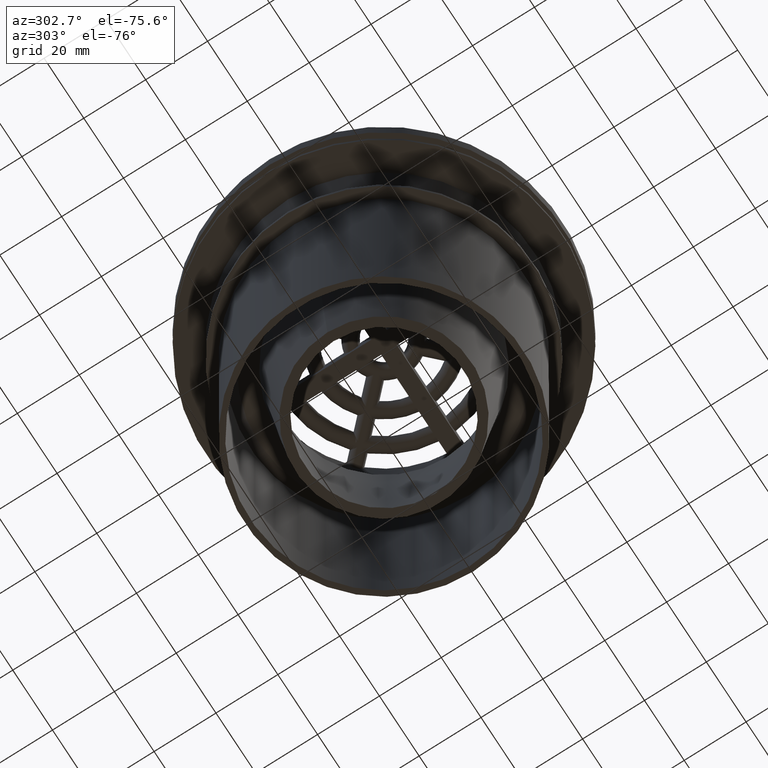
[diagram: clean part render]
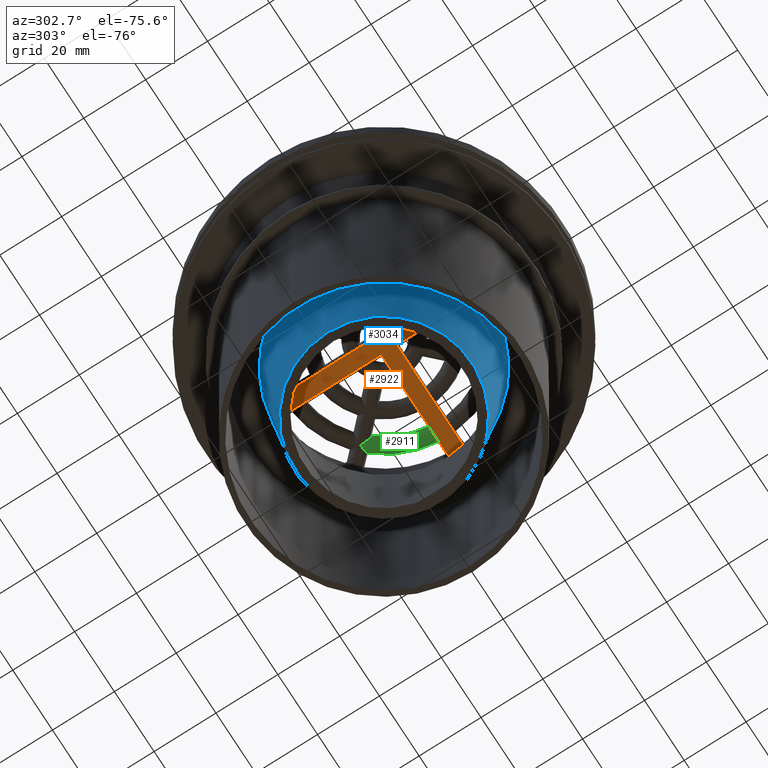
[diagram: same view with three faces highlighted in distinct colors, each labeled with its STEP entity id]
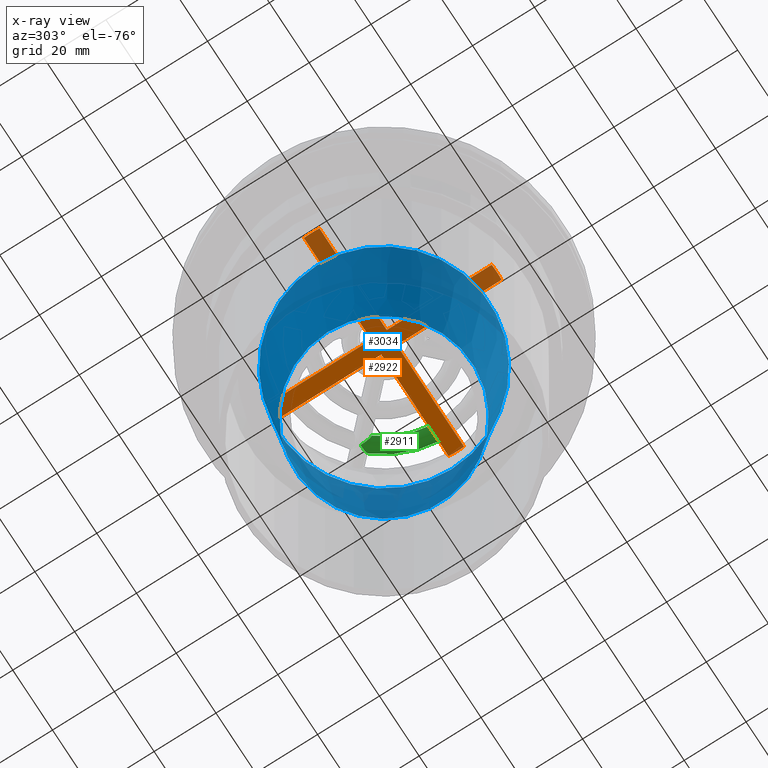
[diagram: x-ray of the same camera — body ghosted, the three highlighted faces saturated]
A machine part, auxiliary view with three faces highlighted in distinct colors.
The next image is the same camera in x-ray (body ghosted, the three faces saturated) — at least one of them is partly hidden behind the body in this view.
Their STEP definitions:

[orange] entity #2922 — the highlighted planar face has unit normal (0, 0, 1).
#35=LINE('',#4727,#237);
#36=LINE('',#4729,#238);
#37=LINE('',#4730,#239);
#38=LINE('',#4732,#240);
#39=LINE('',#4733,#241);
#40=LINE('',#4735,#242);
#41=LINE('',#4736,#243);
#42=LINE('',#4738,#244);
#237=VECTOR('',#3545,1000.);
#238=VECTOR('',#3546,1000.);
#239=VECTOR('',#3547,1000.);
#240=VECTOR('',#3548,1000.);
#241=VECTOR('',#3549,1000.);
#242=VECTOR('',#3550,1000.);
#243=VECTOR('',#3551,1000.);
#244=VECTOR('',#3552,1000.);
#708=ORIENTED_EDGE('',*,*,#1504,.F.);
#709=ORIENTED_EDGE('',*,*,#1584,.T.);
#710=ORIENTED_EDGE('',*,*,#1585,.T.);
#711=ORIENTED_EDGE('',*,*,#1498,.F.);
#712=ORIENTED_EDGE('',*,*,#1586,.T.);
#713=ORIENTED_EDGE('',*,*,#1587,.T.);
#714=ORIENTED_EDGE('',*,*,#1516,.F.);
#715=ORIENTED_EDGE('',*,*,#1588,.T.);
#716=ORIENTED_EDGE('',*,*,#1589,.T.);
#717=ORIENTED_EDGE('',*,*,#1510,.F.);
#718=ORIENTED_EDGE('',*,*,#1590,.T.);
#719=ORIENTED_EDGE('',*,*,#1591,.T.);
#1498=EDGE_CURVE('',#1938,#1939,#2232,.T.);
#1504=EDGE_CURVE('',#1944,#1945,#2235,.T.);
#1510=EDGE_CURVE('',#1950,#1951,#2238,.T.);
#1516=EDGE_CURVE('',#1956,#1957,#2241,.T.);
#1584=EDGE_CURVE('',#1944,#2020,#35,.T.);
#1585=EDGE_CURVE('',#2020,#1939,#36,.T.);
#1586=EDGE_CURVE('',#1938,#2021,#37,.T.);
#1587=EDGE_CURVE('',#2021,#1957,#38,.T.);
#1588=EDGE_CURVE('',#1956,#2022,#39,.T.);
#1589=EDGE_CURVE('',#2022,#1951,#40,.T.);
#1590=EDGE_CURVE('',#1950,#2023,#41,.T.);
#1591=EDGE_CURVE('',#2023,#1945,#42,.T.);
#1938=VERTEX_POINT('',#4318);
#1939=VERTEX_POINT('',#4320);
#1944=VERTEX_POINT('',#4336);
#1945=VERTEX_POINT('',#4338);
#1950=VERTEX_POINT('',#4354);
#1951=VERTEX_POINT('',#4356);
#1956=VERTEX_POINT('',#4372);
#1957=VERTEX_POINT('',#4374);
#2020=VERTEX_POINT('',#4728);
#2021=VERTEX_POINT('',#4731);
#2022=VERTEX_POINT('',#4734);
#2023=VERTEX_POINT('',#4737);
#2232=CIRCLE('',#3100,36.5);
#2235=CIRCLE('',#3103,36.5);
#2238=CIRCLE('',#3106,36.5);
#2241=CIRCLE('',#3109,36.5);
#2417=EDGE_LOOP('',(#708,#709,#710,#711,#712,#713,#714,#715,#716,#717,#718,
#719));
#2647=FACE_BOUND('',#2417,.T.);
#2855=PLANE('',#3150);
#2922=ADVANCED_FACE('',(#2647),#2855,.F.);
#3100=AXIS2_PLACEMENT_3D('',#4319,#3436,#3437);
#3103=AXIS2_PLACEMENT_3D('',#4337,#3444,#3445);
#3106=AXIS2_PLACEMENT_3D('',#4355,#3452,#3453);
#3109=AXIS2_PLACEMENT_3D('',#4373,#3460,#3461);
#3150=AXIS2_PLACEMENT_3D('',#4726,#3543,#3544);
#3436=DIRECTION('',(0.,0.,1.));
#3437=DIRECTION('',(1.,0.,0.));
#3444=DIRECTION('',(0.,0.,1.));
#3445=DIRECTION('',(1.,0.,0.));
#3452=DIRECTION('',(0.,0.,1.));
#3453=DIRECTION('',(1.,0.,0.));
#3460=DIRECTION('',(0.,0.,1.));
#3461=DIRECTION('',(1.,0.,0.));
#3543=DIRECTION('',(0.,0.,1.));
#3544=DIRECTION('',(1.,0.,0.));
#3545=DIRECTION('',(0.,-1.,0.));
#3546=DIRECTION('',(1.,-6.39377913604513E-17,0.));
#3547=DIRECTION('',(-1.,6.39377913604512E-17,0.));
#3548=DIRECTION('',(0.,-1.,0.));
#3549=DIRECTION('',(0.,1.,0.));
#3550=DIRECTION('',(-1.,6.39377913604513E-17,0.));
#3551=DIRECTION('',(1.,-6.39377913604512E-17,0.));
#3552=DIRECTION('',(0.,1.,0.));
#4318=CARTESIAN_POINT('',(36.4142829120662,-2.50000000000004,0.));
#4319=CARTESIAN_POINT('',(0.,0.,0.));
#4320=CARTESIAN_POINT('',(36.4142829120662,2.5,0.));
#4336=CARTESIAN_POINT('',(2.50000000000001,36.4142829120663,0.));
#4337=CARTESIAN_POINT('',(0.,0.,0.));
#4338=CARTESIAN_POINT('',(-2.5,36.4142829120662,0.));
#4354=CARTESIAN_POINT('',(-36.4142829120663,2.5,0.));
#4355=CARTESIAN_POINT('',(0.,0.,0.));
#4356=CARTESIAN_POINT('',(-36.4142829120662,-2.5,0.));
#4372=CARTESIAN_POINT('',(-2.50000000000004,-36.4142829120663,0.));
#4373=CARTESIAN_POINT('',(0.,0.,0.));
#4374=CARTESIAN_POINT('',(2.5,-36.4142829120662,0.));
#4726=CARTESIAN_POINT('',(0.,0.,0.));
#4727=CARTESIAN_POINT('',(2.5,36.4142829120663,0.));
#4728=CARTESIAN_POINT('',(2.5,2.5,0.));
#4729=CARTESIAN_POINT('',(2.5,2.5,0.));
#4730=CARTESIAN_POINT('',(36.4142829120663,-2.5,0.));
#4731=CARTESIAN_POINT('',(2.5,-2.5,0.));
#4732=CARTESIAN_POINT('',(2.5,-2.5,0.));
#4733=CARTESIAN_POINT('',(-2.5,-36.4142829120663,0.));
#4734=CARTESIAN_POINT('',(-2.5,-2.5,0.));
#4735=CARTESIAN_POINT('',(-2.5,-2.5,0.));
#4736=CARTESIAN_POINT('',(-36.4142829120663,2.5,0.));
#4737=CARTESIAN_POINT('',(-2.5,2.5,0.));
#4738=CARTESIAN_POINT('',(-2.5,2.5,0.));

[blue] entity #3034 — the highlighted conical surface has half-angle 5.752 deg.
#21=CONICAL_SURFACE('',#3375,28.478,0.100386889809357);
#1457=ORIENTED_EDGE('',*,*,#1910,.T.);
#1458=ORIENTED_EDGE('',*,*,#1909,.F.);
#1909=EDGE_CURVE('',#2211,#2211,#2381,.T.);
#1910=EDGE_CURVE('',#2212,#2212,#2382,.T.);
#2211=VERTEX_POINT('',#5464);
#2212=VERTEX_POINT('',#5467);
#2381=CIRCLE('',#3374,28.478);
#2382=CIRCLE('',#3376,33.99);
#2599=EDGE_LOOP('',(#1457));
#2600=EDGE_LOOP('',(#1458));
#2829=FACE_BOUND('',#2599,.T.);
#2830=FACE_BOUND('',#2600,.T.);
#3034=ADVANCED_FACE('',(#2829,#2830),#21,.T.);
#3374=AXIS2_PLACEMENT_3D('',#5463,#4185,#4186);
#3375=AXIS2_PLACEMENT_3D('',#5465,#4187,#4188);
#3376=AXIS2_PLACEMENT_3D('',#5466,#4189,#4190);
#4185=DIRECTION('',(0.,0.,-1.));
#4186=DIRECTION('',(-1.,0.,0.));
#4187=DIRECTION('',(0.,0.,1.));
#4188=DIRECTION('',(1.,0.,0.));
#4189=DIRECTION('',(0.,0.,-1.));
#4190=DIRECTION('',(-1.,0.,0.));
#5463=CARTESIAN_POINT('',(0.,0.,-94.223));
#5464=CARTESIAN_POINT('',(-28.478,0.,-94.223));
#5465=CARTESIAN_POINT('',(0.,0.,-94.223));
#5466=CARTESIAN_POINT('',(0.,0.,-39.5));
#5467=CARTESIAN_POINT('',(-33.99,0.,-39.5));

[green] entity #2911 — the highlighted toroidal blend (fillet) surface has major radius 29.93 mm and minor (blend) radius 2.5 mm.
#444=B_SPLINE_CURVE_WITH_KNOTS('',3,(#4408,#4409,#4410,#4411,#4412,#4413,
#4414),.UNSPECIFIED.,.F.,.F.,(4,1,1,1,4),(1.96395943991373E-7,0.00120452883950641,
0.00240886128306883,0.00361319372663125,0.00481752617019367),
 .UNSPECIFIED.);
#445=B_SPLINE_CURVE_WITH_KNOTS('',3,(#4416,#4417,#4418,#4419,#4420,#4421),
 .UNSPECIFIED.,.F.,.F.,(4,1,1,4),(-1.00000050186413E-5,0.00233019339218863,
0.00350029009079226,0.0046703867893959),.UNSPECIFIED.);
#446=B_SPLINE_CURVE_WITH_KNOTS('',3,(#4425,#4426,#4427,#4428,#4429,#4430,
#4431),.UNSPECIFIED.,.F.,.F.,(4,1,1,1,4),(0.00918707091175995,0.0111440362910252,
0.0131010016702904,0.0150579670495556,0.0170149324288208),.UNSPECIFIED.);
#502=TOROIDAL_SURFACE('',#3115,29.93,2.5);
#649=ORIENTED_EDGE('',*,*,#1525,.T.);
#650=ORIENTED_EDGE('',*,*,#1526,.T.);
#651=ORIENTED_EDGE('',*,*,#1527,.F.);
#652=ORIENTED_EDGE('',*,*,#1528,.T.);
#653=ORIENTED_EDGE('',*,*,#1529,.T.);
#1525=EDGE_CURVE('',#1965,#1962,#444,.T.);
#1526=EDGE_CURVE('',#1962,#1966,#445,.T.);
#1527=EDGE_CURVE('',#1967,#1966,#2246,.T.);
#1528=EDGE_CURVE('',#1967,#1968,#446,.T.);
#1529=EDGE_CURVE('',#1968,#1965,#2247,.T.);
#1962=VERTEX_POINT('',#4390);
#1965=VERTEX_POINT('',#4415);
#1966=VERTEX_POINT('',#4422);
#1967=VERTEX_POINT('',#4424);
#1968=VERTEX_POINT('',#4432);
#2246=CIRCLE('',#3116,32.43);
#2247=CIRCLE('',#3117,27.43);
#2406=EDGE_LOOP('',(#649,#650,#651,#652,#653));
#2636=FACE_BOUND('',#2406,.T.);
#2911=ADVANCED_FACE('',(#2636),#502,.T.);
#3115=AXIS2_PLACEMENT_3D('',#4407,#3473,#3474);
#3116=AXIS2_PLACEMENT_3D('',#4423,#3475,#3476);
#3117=AXIS2_PLACEMENT_3D('',#4433,#3477,#3478);
#3473=DIRECTION('',(0.,0.,1.));
#3474=DIRECTION('',(1.,0.,0.));
#3475=DIRECTION('',(0.,0.,1.));
#3476=DIRECTION('',(1.,0.,0.));
#3477=DIRECTION('',(0.,0.,1.));
#3478=DIRECTION('',(1.,0.,0.));
#4390=CARTESIAN_POINT('',(21.1637059609134,21.1637059609134,1.5));
#4407=CARTESIAN_POINT('',(0.,0.,4.));
#4408=CARTESIAN_POINT('',(21.0829798692145,17.5474459632818,4.));
#4409=CARTESIAN_POINT('',(21.0829798692145,17.5474459632818,3.5911936297816));
#4410=CARTESIAN_POINT('',(21.0977964056702,17.8590664085411,2.81048278133822));
#4411=CARTESIAN_POINT('',(21.1329419169615,18.8238588893471,2.03205496664146));
#4412=CARTESIAN_POINT('',(21.1577915076738,19.9524124195373,1.59732054013476));
#4413=CARTESIAN_POINT('',(21.1636822474258,20.7622616130842,1.5));
#4414=CARTESIAN_POINT('',(21.1637059609134,21.1637059609134,1.5));
#4415=CARTESIAN_POINT('',(21.0829798692145,17.5474459632818,4.));
#4416=CARTESIAN_POINT('',(21.1637059609134,21.1637059609134,1.5));
#4417=CARTESIAN_POINT('',(21.9437708154147,21.163659893143,1.5));
#4418=CARTESIAN_POINT('',(23.1400001500124,21.1456923021155,1.76408001650103));
#4419=CARTESIAN_POINT('',(24.3579590555629,21.1063979653203,2.82503016394071));
#4420=CARTESIAN_POINT('',(24.6310005387944,21.0954666328586,3.6009415973539));
#4421=CARTESIAN_POINT('',(24.6310005387945,21.0954666328586,3.9999999999996));
#4422=CARTESIAN_POINT('',(24.6310005387915,21.0954666328587,4.));
#4423=CARTESIAN_POINT('',(0.,0.,4.));
#4424=CARTESIAN_POINT('',(32.3334950167779,2.5,4.));
#4425=CARTESIAN_POINT('',(32.3334950167779,2.5,4.));
#4426=CARTESIAN_POINT('',(32.3334950167779,2.5,3.34068575972928));
#4427=CARTESIAN_POINT('',(31.7872271917417,2.5,2.03972312245354));
#4428=CARTESIAN_POINT('',(29.8265381700375,2.5,1.23131122512406));
#4429=CARTESIAN_POINT('',(27.864236633212,2.5,2.03503286343369));
#4430=CARTESIAN_POINT('',(27.3158360662821,2.5,3.34717007070501));
#4431=CARTESIAN_POINT('',(27.3158360662821,2.5,4.));
#4432=CARTESIAN_POINT('',(27.3158360662821,2.5,4.));
#4433=CARTESIAN_POINT('',(0.,0.,4.));